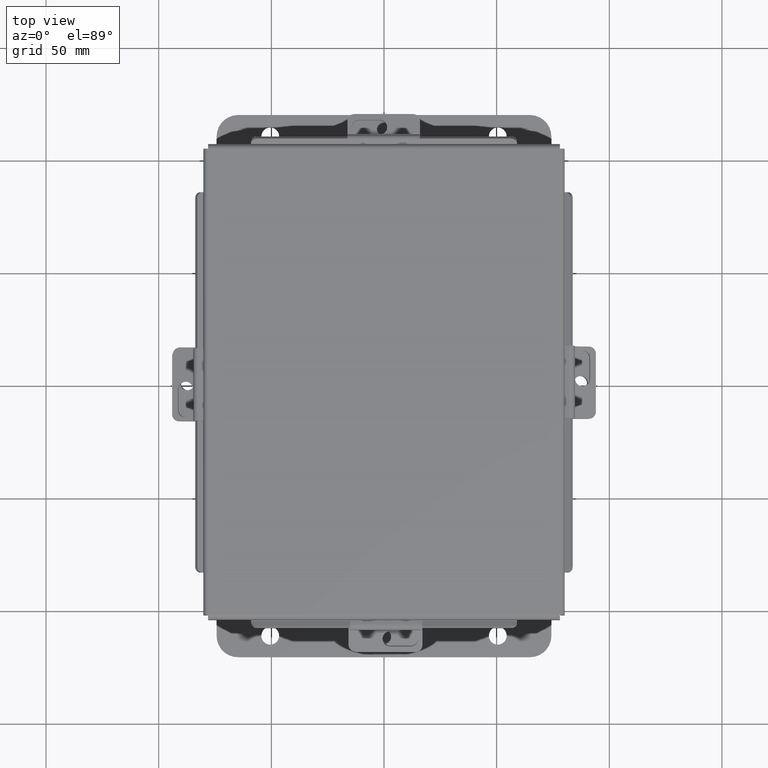
[diagram: clean part render]
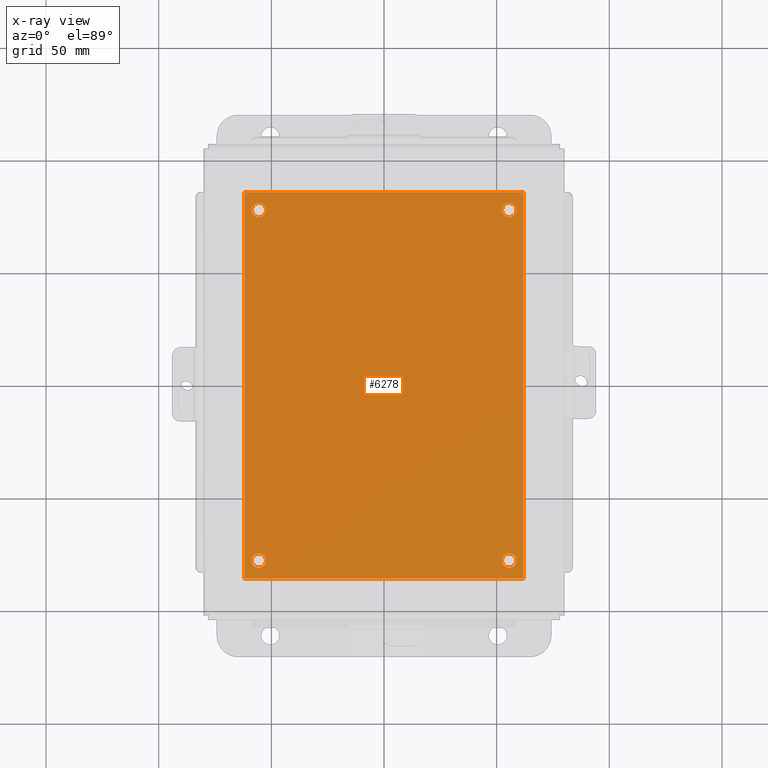
[diagram: x-ray — body ghosted, one internal face saturated and labeled with its STEP entity id]
A machine part, top view, then the same camera in x-ray: the body is ghosted and one INTERNAL B-rep face — a face not visible from any outside direction — is saturated and labeled: STEP entity #6278.
In plain terms, the highlighted planar face has unit normal (0, 0, -1).
Its self-contained STEP definition (entity closure, byte-faithful):
#19 = DIRECTION ( 'NONE',  ( -1.000000000000000000, -0.0000000000000000000, -0.0000000000000000000 ) ) ;
#121 = DIRECTION ( 'NONE',  ( -1.000000000000000000, 0.0000000000000000000, 0.0000000000000000000 ) ) ;
#228 = EDGE_LOOP ( 'NONE', ( #8257, #305 ) ) ;
#305 = ORIENTED_EDGE ( 'NONE', *, *, #3218, .T. ) ;
#331 = AXIS2_PLACEMENT_3D ( 'NONE', #3620, #5843, #9558 ) ;
#431 = CIRCLE ( 'NONE', #3048, 0.1250000000000000600 ) ;
#531 = DIRECTION ( 'NONE',  ( -0.0000000000000000000, -0.0000000000000000000, 1.000000000000000000 ) ) ;
#608 = ORIENTED_EDGE ( 'NONE', *, *, #2338, .F. ) ;
#621 = FACE_BOUND ( 'NONE', #8187, .T. ) ;
#630 = CARTESIAN_POINT ( 'NONE',  ( 4.750000000000001800, 0.3120000000000020500, -0.07470000000000003000 ) ) ;
#770 = AXIS2_PLACEMENT_3D ( 'NONE', #6432, #2021, #7180 ) ;
#784 = EDGE_CURVE ( 'NONE', #3274, #5468, #1967, .T. ) ;
#814 = VERTEX_POINT ( 'NONE', #7611 ) ;
#1062 = VERTEX_POINT ( 'NONE', #6882 ) ;
#1108 = VERTEX_POINT ( 'NONE', #8596 ) ;
#1191 = DIRECTION ( 'NONE',  ( -0.0000000000000000000, -0.0000000000000000000, 1.000000000000000000 ) ) ;
#1272 = CIRCLE ( 'NONE', #4362, 0.1250000000000000600 ) ;
#1319 = VERTEX_POINT ( 'NONE', #2513 ) ;
#1336 = EDGE_CURVE ( 'NONE', #1319, #2272, #1960, .T. ) ;
#1458 = CARTESIAN_POINT ( 'NONE',  ( 0.0000000000000000000, 6.750000000000000000, -0.07470000000000003000 ) ) ;
#1515 = CIRCLE ( 'NONE', #770, 0.1249999999999999000 ) ;
#1576 = LINE ( 'NONE', #6744, #3780 ) ;
#1621 = AXIS2_PLACEMENT_3D ( 'NONE', #1981, #531, #121 ) ;
#1755 = DIRECTION ( 'NONE',  ( -0.0000000000000000000, -0.0000000000000000000, 1.000000000000000000 ) ) ;
#1777 = DIRECTION ( 'NONE',  ( -1.000000000000000000, 0.0000000000000000000, 0.0000000000000000000 ) ) ;
#1800 = EDGE_CURVE ( 'NONE', #3393, #1062, #431, .T. ) ;
#1809 = DIRECTION ( 'NONE',  ( -0.0000000000000000000, -0.0000000000000000000, 1.000000000000000000 ) ) ;
#1882 = CARTESIAN_POINT ( 'NONE',  ( 0.2500000000000000600, 6.437999999999997900, -0.07470000000000003000 ) ) ;
#1960 = LINE ( 'NONE', #4164, #5645 ) ;
#1967 = CIRCLE ( 'NONE', #1621, 0.1249999999999999000 ) ;
#1981 = CARTESIAN_POINT ( 'NONE',  ( 4.625000000000001800, 0.3120000000000020500, -0.07470000000000003000 ) ) ;
#2021 = DIRECTION ( 'NONE',  ( -0.0000000000000000000, -0.0000000000000000000, 1.000000000000000000 ) ) ;
#2119 = ORIENTED_EDGE ( 'NONE', *, *, #3266, .F. ) ;
#2193 = CARTESIAN_POINT ( 'NONE',  ( 4.750000000000000000, 6.437999999999997900, -0.07470000000000003000 ) ) ;
#2220 = EDGE_CURVE ( 'NONE', #5468, #3274, #3783, .T. ) ;
#2272 = VERTEX_POINT ( 'NONE', #4348 ) ;
#2338 = EDGE_CURVE ( 'NONE', #7721, #1319, #6559, .T. ) ;
#2393 = CIRCLE ( 'NONE', #2750, 0.1250000000000000000 ) ;
#2420 = VERTEX_POINT ( 'NONE', #2193 ) ;
#2513 = CARTESIAN_POINT ( 'NONE',  ( 0.0000000000000000000, 0.0000000000000000000, -0.07470000000000003000 ) ) ;
#2750 = AXIS2_PLACEMENT_3D ( 'NONE', #1882, #1809, #1777 ) ;
#2849 = VECTOR ( 'NONE', #3557, 39.37007874015748100 ) ;
#2856 = VERTEX_POINT ( 'NONE', #7536 ) ;
#2919 = CIRCLE ( 'NONE', #7798, 0.1249999999999999000 ) ;
#3048 = AXIS2_PLACEMENT_3D ( 'NONE', #4615, #7048, #7186 ) ;
#3062 = AXIS2_PLACEMENT_3D ( 'NONE', #6858, #3906, #9118 ) ;
#3218 = EDGE_CURVE ( 'NONE', #1108, #2856, #2393, .T. ) ;
#3266 = EDGE_CURVE ( 'NONE', #814, #7721, #4131, .T. ) ;
#3274 = VERTEX_POINT ( 'NONE', #630 ) ;
#3393 = VERTEX_POINT ( 'NONE', #8812 ) ;
#3397 = EDGE_LOOP ( 'NONE', ( #608, #2119, #8455, #4786 ) ) ;
#3532 = CARTESIAN_POINT ( 'NONE',  ( 0.0000000000000000000, 0.0000000000000000000, -0.07470000000000003000 ) ) ;
#3557 = DIRECTION ( 'NONE',  ( -0.0000000000000000000, -1.000000000000000000, -0.0000000000000000000 ) ) ;
#3573 = EDGE_CURVE ( 'NONE', #2272, #814, #1576, .T. ) ;
#3620 = CARTESIAN_POINT ( 'NONE',  ( 4.625000000000001800, 0.3120000000000020500, -0.07470000000000003000 ) ) ;
#3622 = ORIENTED_EDGE ( 'NONE', *, *, #1800, .T. ) ;
#3731 = VERTEX_POINT ( 'NONE', #5644 ) ;
#3780 = VECTOR ( 'NONE', #6651, 39.37007874015748100 ) ;
#3783 = CIRCLE ( 'NONE', #331, 0.1249999999999999000 ) ;
#3801 = AXIS2_PLACEMENT_3D ( 'NONE', #6692, #6680, #6672 ) ;
#3906 = DIRECTION ( 'NONE',  ( 0.0000000000000000000, 0.0000000000000000000, -1.000000000000000000 ) ) ;
#4131 = LINE ( 'NONE', #1458, #7842 ) ;
#4164 = CARTESIAN_POINT ( 'NONE',  ( 0.0000000000000000000, 0.0000000000000000000, -0.07470000000000003000 ) ) ;
#4275 = ORIENTED_EDGE ( 'NONE', *, *, #9078, .T. ) ;
#4320 = FACE_OUTER_BOUND ( 'NONE', #3397, .T. ) ;
#4348 = CARTESIAN_POINT ( 'NONE',  ( 4.875000000000000000, 0.0000000000000000000, -0.07470000000000003000 ) ) ;
#4362 = AXIS2_PLACEMENT_3D ( 'NONE', #5613, #1191, #6345 ) ;
#4615 = CARTESIAN_POINT ( 'NONE',  ( 0.2500000000000020000, 0.3120000000000015000, -0.07470000000000003000 ) ) ;
#4786 = ORIENTED_EDGE ( 'NONE', *, *, #1336, .F. ) ;
#5378 = EDGE_CURVE ( 'NONE', #2856, #1108, #6752, .T. ) ;
#5448 = EDGE_LOOP ( 'NONE', ( #8023, #6306 ) ) ;
#5468 = VERTEX_POINT ( 'NONE', #6008 ) ;
#5613 = CARTESIAN_POINT ( 'NONE',  ( 0.2500000000000020000, 0.3120000000000015000, -0.07470000000000003000 ) ) ;
#5644 = CARTESIAN_POINT ( 'NONE',  ( 4.500000000000000900, 6.437999999999997900, -0.07470000000000003000 ) ) ;
#5645 = VECTOR ( 'NONE', #8431, 39.37007874015748100 ) ;
#5843 = DIRECTION ( 'NONE',  ( -0.0000000000000000000, -0.0000000000000000000, 1.000000000000000000 ) ) ;
#6008 = CARTESIAN_POINT ( 'NONE',  ( 4.500000000000002700, 0.3120000000000020500, -0.07470000000000003000 ) ) ;
#6172 = CARTESIAN_POINT ( 'NONE',  ( 4.625000000000000900, 6.437999999999997900, -0.07470000000000003000 ) ) ;
#6233 = ORIENTED_EDGE ( 'NONE', *, *, #7694, .T. ) ;
#6278 = ADVANCED_FACE ( 'NONE', ( #621, #8275, #8533, #6532, #4320 ), #8357, .T. ) ;
#6306 = ORIENTED_EDGE ( 'NONE', *, *, #2220, .T. ) ;
#6345 = DIRECTION ( 'NONE',  ( -1.000000000000000000, 0.0000000000000000000, 0.0000000000000000000 ) ) ;
#6432 = CARTESIAN_POINT ( 'NONE',  ( 4.625000000000000900, 6.437999999999997900, -0.07470000000000003000 ) ) ;
#6532 = FACE_BOUND ( 'NONE', #228, .T. ) ;
#6559 = LINE ( 'NONE', #3532, #2849 ) ;
#6651 = DIRECTION ( 'NONE',  ( 0.0000000000000000000, 1.000000000000000000, 0.0000000000000000000 ) ) ;
#6672 = DIRECTION ( 'NONE',  ( -1.000000000000000000, 0.0000000000000000000, 0.0000000000000000000 ) ) ;
#6680 = DIRECTION ( 'NONE',  ( -0.0000000000000000000, -0.0000000000000000000, 1.000000000000000000 ) ) ;
#6692 = CARTESIAN_POINT ( 'NONE',  ( 0.2500000000000000600, 6.437999999999997900, -0.07470000000000003000 ) ) ;
#6744 = CARTESIAN_POINT ( 'NONE',  ( 4.875000000000000000, 0.0000000000000000000, -0.07470000000000003000 ) ) ;
#6752 = CIRCLE ( 'NONE', #3801, 0.1250000000000000000 ) ;
#6858 = CARTESIAN_POINT ( 'NONE',  ( 0.0000000000000000000, 0.0000000000000000000, -0.07470000000000003000 ) ) ;
#6882 = CARTESIAN_POINT ( 'NONE',  ( 0.3750000000000020000, 0.3120000000000015000, -0.07470000000000003000 ) ) ;
#6930 = DIRECTION ( 'NONE',  ( -1.000000000000000000, 0.0000000000000000000, 0.0000000000000000000 ) ) ;
#7048 = DIRECTION ( 'NONE',  ( -0.0000000000000000000, -0.0000000000000000000, 1.000000000000000000 ) ) ;
#7180 = DIRECTION ( 'NONE',  ( -1.000000000000000000, 0.0000000000000000000, 0.0000000000000000000 ) ) ;
#7186 = DIRECTION ( 'NONE',  ( -1.000000000000000000, 0.0000000000000000000, 0.0000000000000000000 ) ) ;
#7536 = CARTESIAN_POINT ( 'NONE',  ( 0.3750000000000001100, 6.437999999999997900, -0.07470000000000003000 ) ) ;
#7611 = CARTESIAN_POINT ( 'NONE',  ( 4.875000000000000000, 6.750000000000000000, -0.07470000000000003000 ) ) ;
#7678 = CARTESIAN_POINT ( 'NONE',  ( 0.0000000000000000000, 6.750000000000000000, -0.07470000000000003000 ) ) ;
#7694 = EDGE_CURVE ( 'NONE', #3731, #2420, #2919, .T. ) ;
#7721 = VERTEX_POINT ( 'NONE', #7678 ) ;
#7798 = AXIS2_PLACEMENT_3D ( 'NONE', #6172, #1755, #6930 ) ;
#7842 = VECTOR ( 'NONE', #19, 39.37007874015748100 ) ;
#7858 = EDGE_LOOP ( 'NONE', ( #9108, #6233 ) ) ;
#8023 = ORIENTED_EDGE ( 'NONE', *, *, #784, .T. ) ;
#8187 = EDGE_LOOP ( 'NONE', ( #4275, #3622 ) ) ;
#8257 = ORIENTED_EDGE ( 'NONE', *, *, #5378, .T. ) ;
#8275 = FACE_BOUND ( 'NONE', #5448, .T. ) ;
#8357 = PLANE ( 'NONE',  #3062 ) ;
#8431 = DIRECTION ( 'NONE',  ( 1.000000000000000000, 0.0000000000000000000, 0.0000000000000000000 ) ) ;
#8442 = EDGE_CURVE ( 'NONE', #2420, #3731, #1515, .T. ) ;
#8455 = ORIENTED_EDGE ( 'NONE', *, *, #3573, .F. ) ;
#8533 = FACE_BOUND ( 'NONE', #7858, .T. ) ;
#8596 = CARTESIAN_POINT ( 'NONE',  ( 0.1250000000000000600, 6.437999999999997900, -0.07470000000000003000 ) ) ;
#8812 = CARTESIAN_POINT ( 'NONE',  ( 0.1250000000000019200, 0.3120000000000015000, -0.07470000000000003000 ) ) ;
#9078 = EDGE_CURVE ( 'NONE', #1062, #3393, #1272, .T. ) ;
#9108 = ORIENTED_EDGE ( 'NONE', *, *, #8442, .T. ) ;
#9118 = DIRECTION ( 'NONE',  ( -1.000000000000000000, 0.0000000000000000000, -0.0000000000000000000 ) ) ;
#9558 = DIRECTION ( 'NONE',  ( -1.000000000000000000, 0.0000000000000000000, 0.0000000000000000000 ) ) ;